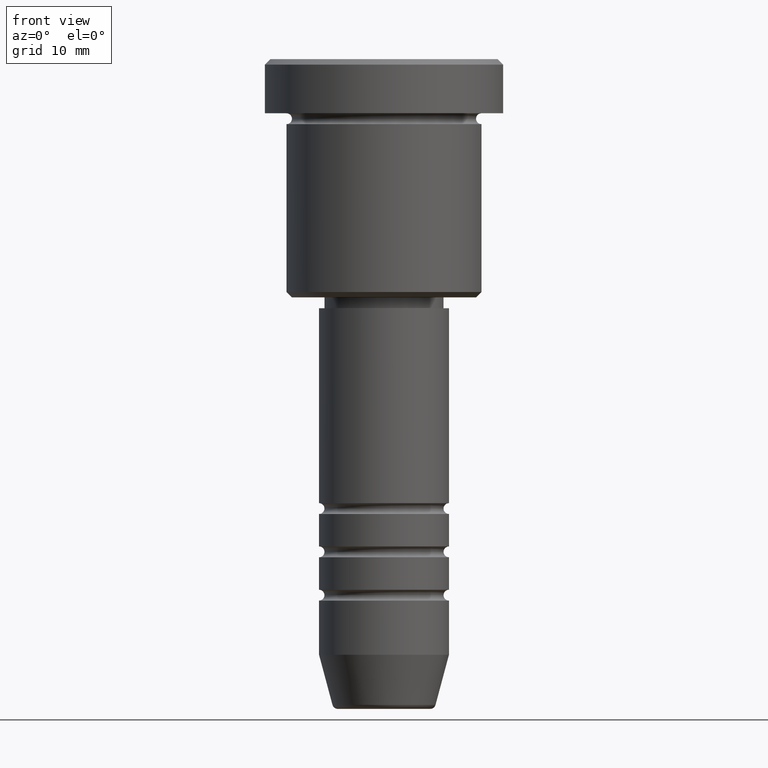
[diagram: clean part render]
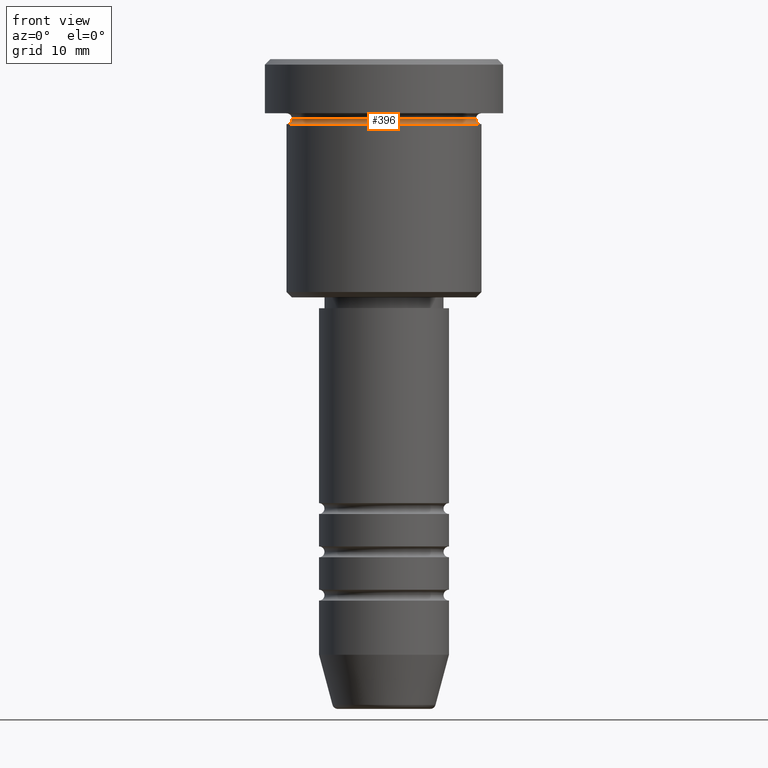
[diagram: same view with one face highlighted and labeled with its STEP entity id]
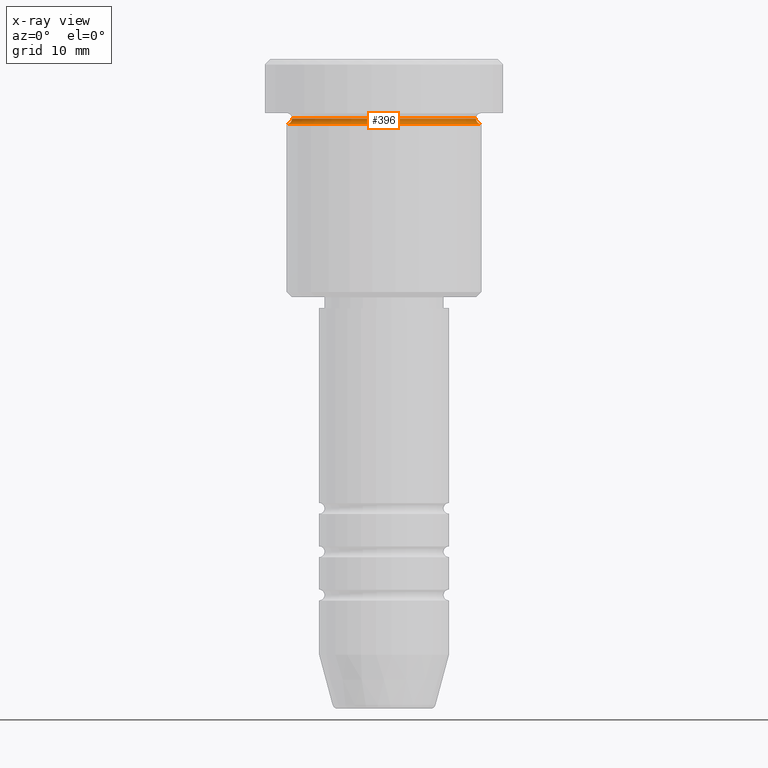
[diagram: x-ray of the same camera — body ghosted, the highlighted face saturated]
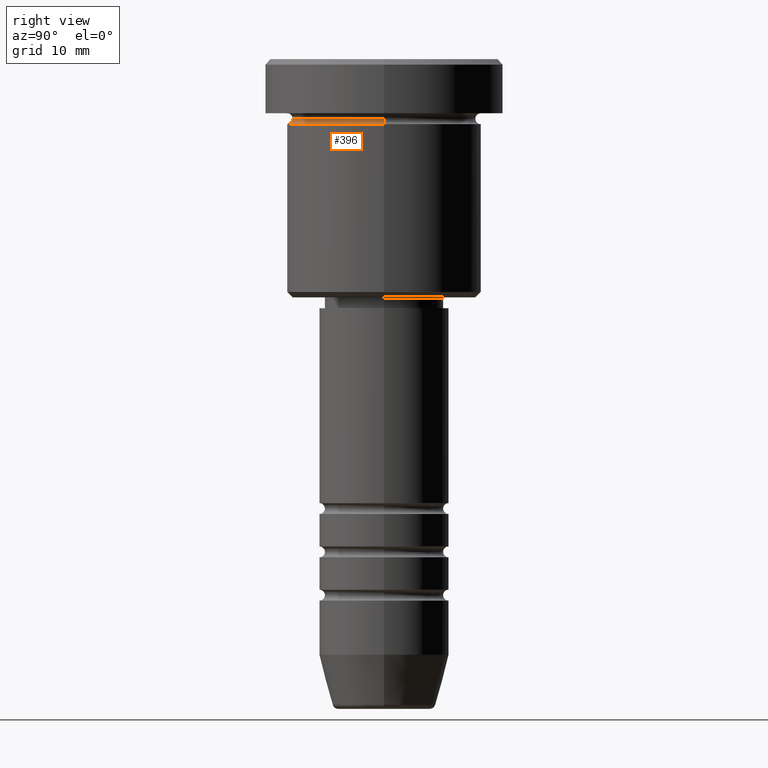
[diagram: same view with one face highlighted and labeled with its STEP entity id]
A machine part, front view. The second image highlights one B-rep face of the part: STEP entity #396.
The next image is the same camera in x-ray: the body ghosted, the highlighted face saturated — about 0% of this face is hidden behind the body in this view.
A second angle (right view) of the same face is appended — the face is thin or edge-on in the first view.
In plain terms, the highlighted toroidal blend (fillet) surface has major radius 9 mm and minor (blend) radius 0.5 mm.
Its self-contained STEP definition (entity closure, byte-faithful):
#13 = AXIS2_PLACEMENT_3D ( 'NONE', #45, #851, #858 ) ;
#45 = CARTESIAN_POINT ( 'NONE',  ( 0.000000000000000000, 0.000000000000000000, -5.500000000000000000 ) ) ;
#72 = EDGE_CURVE ( 'NONE', #526, #94, #721, .T. ) ;
#92 = TOROIDAL_SURFACE ( 'NONE', #13, 9.000000000000000000, 0.5000000000000000000 ) ;
#94 = VERTEX_POINT ( 'NONE', #264 ) ;
#105 = DIRECTION ( 'NONE',  ( 1.000000000000000000, 0.000000000000000000, 0.000000000000000000 ) ) ;
#154 = EDGE_CURVE ( 'NONE', #187, #705, #1064, .T. ) ;
#187 = VERTEX_POINT ( 'NONE', #693 ) ;
#204 = DIRECTION ( 'NONE',  ( 0.000000000000000000, 0.000000000000000000, -1.000000000000000000 ) ) ;
#230 = AXIS2_PLACEMENT_3D ( 'NONE', #331, #701, #587 ) ;
#238 = EDGE_CURVE ( 'NONE', #705, #94, #699, .T. ) ;
#264 = CARTESIAN_POINT ( 'NONE',  ( 9.000000000000000000, 0.000000000000000000, -6.000000000000000000 ) ) ;
#268 = AXIS2_PLACEMENT_3D ( 'NONE', #422, #437, #783 ) ;
#314 = ORIENTED_EDGE ( 'NONE', *, *, #238, .F. ) ;
#331 = CARTESIAN_POINT ( 'NONE',  ( -9.000000000000000000, 1.102182119232617714E-15, -5.500000000000000000 ) ) ;
#396 = ADVANCED_FACE ( 'NONE', ( #491 ), #92, .F. ) ;
#407 = CARTESIAN_POINT ( 'NONE',  ( 8.499999999999998224, 0.000000000000000000, -5.500000000000000000 ) ) ;
#422 = CARTESIAN_POINT ( 'NONE',  ( 0.000000000000000000, 0.000000000000000000, -5.500000000000000000 ) ) ;
#436 = CARTESIAN_POINT ( 'NONE',  ( -9.000000000000000000, 1.102182119232617714E-15, -6.000000000000000000 ) ) ;
#437 = DIRECTION ( 'NONE',  ( -0.000000000000000000, -0.000000000000000000, 1.000000000000000000 ) ) ;
#463 = DIRECTION ( 'NONE',  ( 0.000000000000000000, -1.000000000000000000, 0.000000000000000000 ) ) ;
#474 = EDGE_LOOP ( 'NONE', ( #654, #1021, #684, #314 ) ) ;
#491 = FACE_OUTER_BOUND ( 'NONE', #474, .T. ) ;
#493 = AXIS2_PLACEMENT_3D ( 'NONE', #645, #463, #204 ) ;
#526 = VERTEX_POINT ( 'NONE', #436 ) ;
#587 = DIRECTION ( 'NONE',  ( -1.000000000000000000, 1.224646799147353454E-16, 0.000000000000000000 ) ) ;
#645 = CARTESIAN_POINT ( 'NONE',  ( 9.000000000000000000, 0.000000000000000000, -5.500000000000000000 ) ) ;
#654 = ORIENTED_EDGE ( 'NONE', *, *, #154, .F. ) ;
#684 = ORIENTED_EDGE ( 'NONE', *, *, #72, .T. ) ;
#693 = CARTESIAN_POINT ( 'NONE',  ( -8.499999999999998224, 1.071565949253933927E-15, -5.500000000000000000 ) ) ;
#699 = CIRCLE ( 'NONE', #493, 0.5000000000000004441 ) ;
#701 = DIRECTION ( 'NONE',  ( 1.224646799147353207E-16, 1.000000000000000000, 0.000000000000000000 ) ) ;
#705 = VERTEX_POINT ( 'NONE', #407 ) ;
#721 = CIRCLE ( 'NONE', #992, 9.000000000000000000 ) ;
#725 = EDGE_CURVE ( 'NONE', #187, #526, #950, .T. ) ;
#761 = CARTESIAN_POINT ( 'NONE',  ( 0.000000000000000000, 0.000000000000000000, -6.000000000000000000 ) ) ;
#783 = DIRECTION ( 'NONE',  ( 1.000000000000000000, 0.000000000000000000, 0.000000000000000000 ) ) ;
#851 = DIRECTION ( 'NONE',  ( -0.000000000000000000, -0.000000000000000000, 1.000000000000000000 ) ) ;
#858 = DIRECTION ( 'NONE',  ( 1.000000000000000000, 0.000000000000000000, 0.000000000000000000 ) ) ;
#950 = CIRCLE ( 'NONE', #230, 0.5000000000000004441 ) ;
#992 = AXIS2_PLACEMENT_3D ( 'NONE', #761, #1131, #105 ) ;
#1021 = ORIENTED_EDGE ( 'NONE', *, *, #725, .T. ) ;
#1064 = CIRCLE ( 'NONE', #268, 8.499999999999998224 ) ;
#1131 = DIRECTION ( 'NONE',  ( -0.000000000000000000, -0.000000000000000000, 1.000000000000000000 ) ) ;